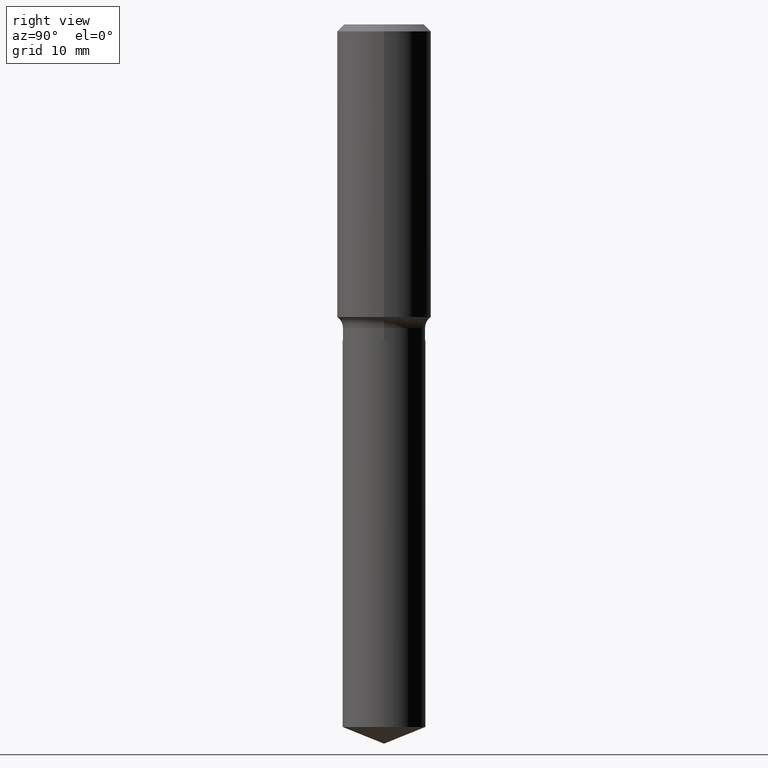
[diagram: clean part render]
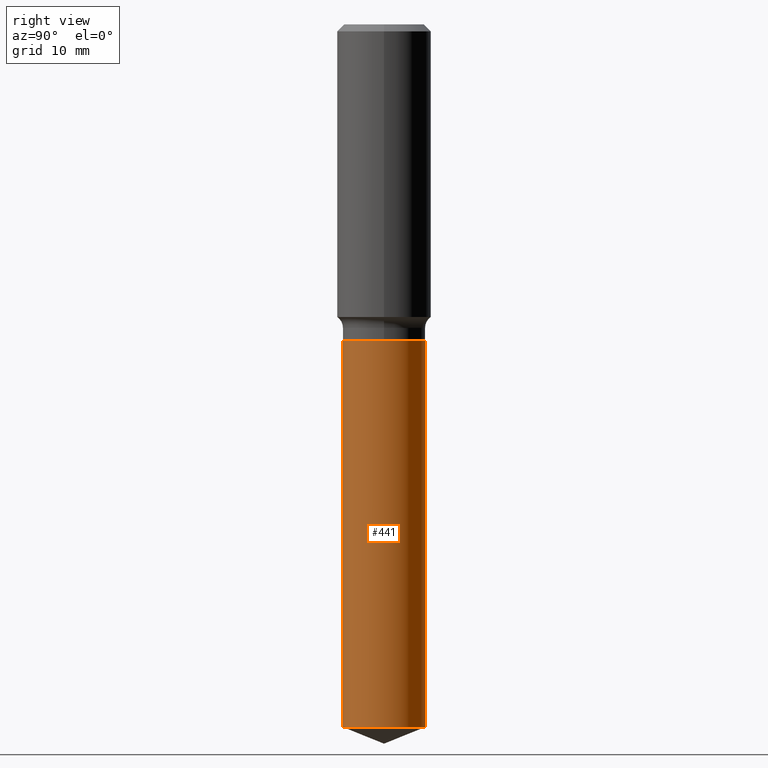
[diagram: same view with one face highlighted and labeled with its STEP entity id]
A machine part, right view. The second image highlights one B-rep face of the part: STEP entity #441.
In plain terms, the highlighted cylindrical surface (partial cylindrical patch) has radius 6.1519 mm, axis along (-0, 0, 1).
Its self-contained STEP definition (entity closure, byte-faithful):
#14 = DIRECTION ( 'NONE',  ( -2.445479514057623274E-29, 3.491466004560290354E-15, 1.000000000000000000 ) ) ;
#26 = EDGE_CURVE ( 'NONE', #99, #455, #280, .T. ) ;
#28 = VERTEX_POINT ( 'NONE', #238 ) ;
#51 = CARTESIAN_POINT ( 'NONE',  ( 1.006250441776211636E-28, -1.436652012914726322E-14, -4.114744848102726671 ) ) ;
#52 = VERTEX_POINT ( 'NONE', #383 ) ;
#62 = DIRECTION ( 'NONE',  ( -6.982962677686265922E-15, -1.000000000000000000, 3.383791899666717075E-15 ) ) ;
#68 = AXIS2_PLACEMENT_3D ( 'NONE', #408, #333, #439 ) ;
#99 = VERTEX_POINT ( 'NONE', #459 ) ;
#104 = LINE ( 'NONE', #292, #116 ) ;
#116 = VECTOR ( 'NONE', #444, 39.37007874015748143 ) ;
#141 = CARTESIAN_POINT ( 'NONE',  ( 1.720934506011007605E-15, 0.2421999999999935593, -1.850400000000001377 ) ) ;
#168 = EDGE_CURVE ( 'NONE', #28, #52, #452, .T. ) ;
#169 = DIRECTION ( 'NONE',  ( -2.445479514057623274E-29, 3.491466004560290354E-15, 1.000000000000000000 ) ) ;
#181 = ORIENTED_EDGE ( 'NONE', *, *, #412, .F. ) ;
#207 = DIRECTION ( 'NONE',  ( -6.982962677686265922E-15, -1.000000000000000000, 4.511722532888956363E-15 ) ) ;
#215 = CARTESIAN_POINT ( 'NONE',  ( 1.720934506011063023E-15, 0.2421999999999855935, -4.114744848102727559 ) ) ;
#238 = CARTESIAN_POINT ( 'NONE',  ( -1.691273560535568632E-15, -0.2422000000000064657, -1.850400000000000045 ) ) ;
#247 = FACE_OUTER_BOUND ( 'NONE', #321, .T. ) ;
#263 = CYLINDRICAL_SURFACE ( 'NONE', #293, 0.2422000000000000264 ) ;
#280 = CIRCLE ( 'NONE', #325, 0.2422000000000000264 ) ;
#292 = CARTESIAN_POINT ( 'NONE',  ( -1.691273560535568632E-15, -0.2422000000000064657, -1.850399999999999823 ) ) ;
#293 = AXIS2_PLACEMENT_3D ( 'NONE', #299, #169, #62 ) ;
#299 = CARTESIAN_POINT ( 'NONE',  ( 4.525095478964977954E-29, -6.460637069395358365E-15, -1.850400000000000489 ) ) ;
#321 = EDGE_LOOP ( 'NONE', ( #351, #434, #381, #181 ) ) ;
#325 = AXIS2_PLACEMENT_3D ( 'NONE', #51, #14, #207 ) ;
#333 = DIRECTION ( 'NONE',  ( -2.445479514057623274E-29, 3.491466004560290354E-15, 1.000000000000000000 ) ) ;
#351 = ORIENTED_EDGE ( 'NONE', *, *, #26, .T. ) ;
#381 = ORIENTED_EDGE ( 'NONE', *, *, #168, .F. ) ;
#383 = CARTESIAN_POINT ( 'NONE',  ( 1.720934506011064009E-15, 0.2421999999999935871, -1.850400000000001599 ) ) ;
#391 = VECTOR ( 'NONE', #476, 39.37007874015748143 ) ;
#408 = CARTESIAN_POINT ( 'NONE',  ( 4.525095478964978515E-29, -6.460637069395359943E-15, -1.850400000000000933 ) ) ;
#412 = EDGE_CURVE ( 'NONE', #99, #28, #104, .T. ) ;
#415 = EDGE_CURVE ( 'NONE', #455, #52, #438, .T. ) ;
#434 = ORIENTED_EDGE ( 'NONE', *, *, #415, .T. ) ;
#438 = LINE ( 'NONE', #141, #391 ) ;
#439 = DIRECTION ( 'NONE',  ( -6.982962677686265922E-15, -1.000000000000000000, 3.383791899666717075E-15 ) ) ;
#441 = ADVANCED_FACE ( 'NONE', ( #247 ), #263, .T. ) ;
#444 = DIRECTION ( 'NONE',  ( -2.445479514057622994E-29, 3.491466004560290748E-15, 1.000000000000000000 ) ) ;
#452 = CIRCLE ( 'NONE', #68, 0.2422000000000000264 ) ;
#455 = VERTEX_POINT ( 'NONE', #215 ) ;
#459 = CARTESIAN_POINT ( 'NONE',  ( -1.691273560535512820E-15, -0.2422000000000143483, -4.114744848102725783 ) ) ;
#476 = DIRECTION ( 'NONE',  ( -2.445479514057622994E-29, 3.491466004560290748E-15, 1.000000000000000000 ) ) ;